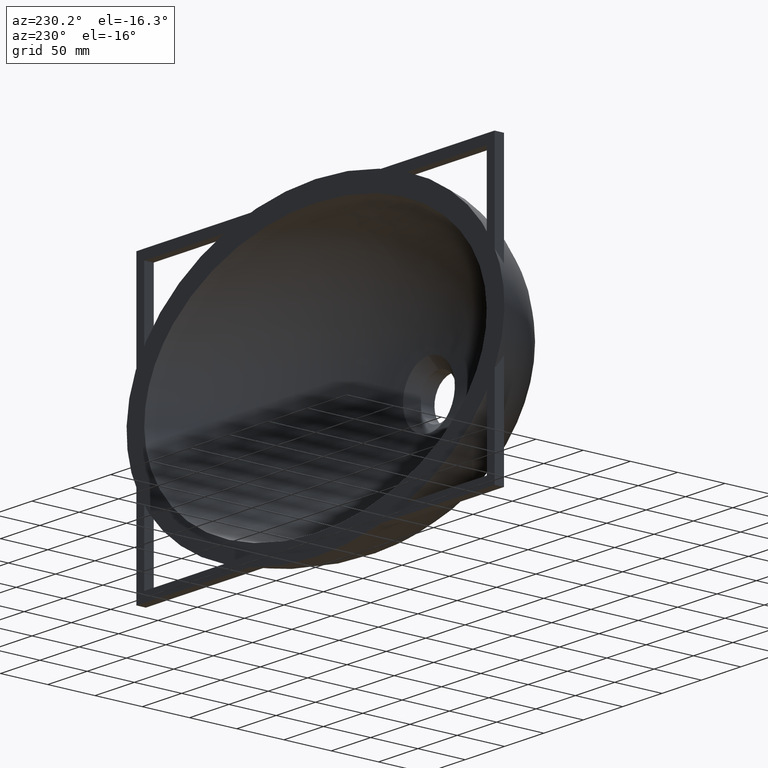
[diagram: clean part render]
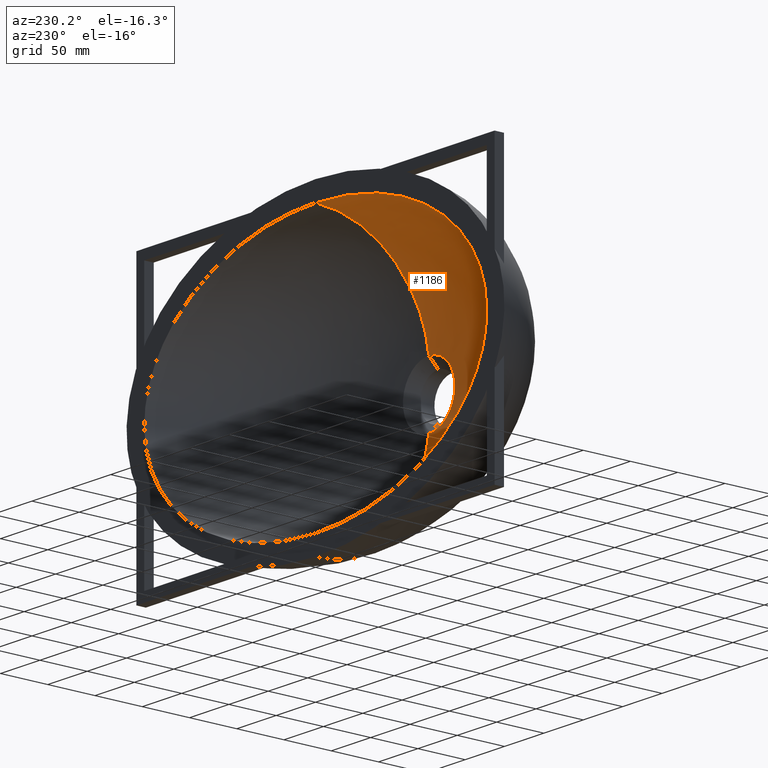
[diagram: same view with one face highlighted and labeled with its STEP entity id]
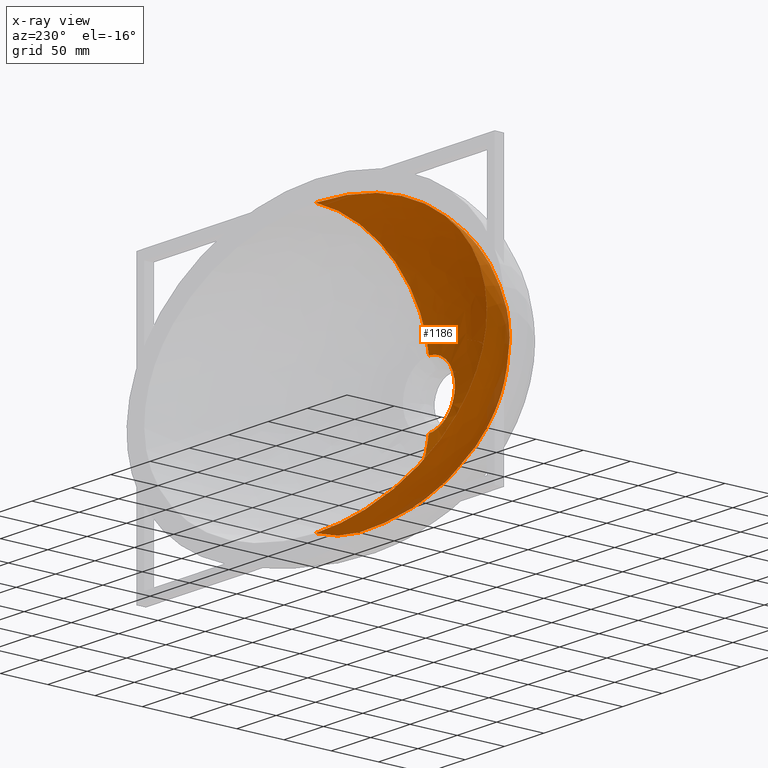
[diagram: x-ray of the same camera — body ghosted, the highlighted face saturated]
A machine part, auxiliary view. The second image highlights one B-rep face of the part: STEP entity #1186.
The next image is the same camera in x-ray: the body ghosted, the highlighted face saturated — about 4% of this face is hidden behind the body in this view.
In plain terms, the highlighted face is a freeform B-spline surface patch.
Its self-contained STEP definition (entity closure, byte-faithful):
#3 = CARTESIAN_POINT ( 'NONE',  ( -212.4004091137150600, 2.775557561562891400E-014, 36.95796738000058900 ) ) ;
#9 = CARTESIAN_POINT ( 'NONE',  ( 1.533184774726040100, -95.91021076863501100, 93.73218920455244100 ) ) ;
#19 = CARTESIAN_POINT ( 'NONE',  ( -161.4565826743787200, -68.44751098534096900, -32.17167586065722400 ) ) ;
#22 = EDGE_LOOP ( 'NONE', ( #2984, #1454, #49, #1190 ) ) ;
#39 = CARTESIAN_POINT ( 'NONE',  ( -155.6603527541727500, 0.0000000000000000000, -100.3236698321235100 ) ) ;
#49 = ORIENTED_EDGE ( 'NONE', *, *, #1836, .T. ) ;
#66 = CARTESIAN_POINT ( 'NONE',  ( -3.549960211076625800E-010, -80.83348536693287700, -109.8646564862800500 ) ) ;
#68 = CARTESIAN_POINT ( 'NONE',  ( 215.7975979792689100, -8.702834607775017200, -1.734723475976807100E-015 ) ) ;
#78 = CARTESIAN_POINT ( 'NONE',  ( -1.864330571446748400, -80.83348536693277700, 109.8646564862793300 ) ) ;
#81 = CARTESIAN_POINT ( 'NONE',  ( -208.2703021176164400, -8.591510840964545500, 36.89834944849305700 ) ) ;
#83 = CARTESIAN_POINT ( 'NONE',  ( -60.78651007786673000, 2.775557561562891400E-014, 135.8147164080128600 ) ) ;
#99 = CARTESIAN_POINT ( 'NONE',  ( -83.26338564322071500, -64.50469932050897600, -107.4812804148762100 ) ) ;
#118 = CARTESIAN_POINT ( 'NONE',  ( -2.717964742160461400E-011, -21.89393603866704300, -140.3066426851461600 ) ) ;
#129 = CARTESIAN_POINT ( 'NONE',  ( 162.8348448348519600, -47.10691823003046600, 66.76528916502124400 ) ) ;
#135 = CARTESIAN_POINT ( 'NONE',  ( -17.28646922207138900, -116.2650988404922900, 52.95463973616654100 ) ) ;
#157 = CARTESIAN_POINT ( 'NONE',  ( 43.15938982220106400, -119.6776503496503500, 2.255140518769849200E-014 ) ) ;
#159 = CARTESIAN_POINT ( 'NONE',  ( -44.13779843417822900, -116.9229571659076600, -38.98386121103657600 ) ) ;
#168 = CARTESIAN_POINT ( 'NONE',  ( -48.82308810643057500, -43.53764199406548100, -129.5158270008289800 ) ) ;
#194 = CARTESIAN_POINT ( 'NONE',  ( 33.41440524801380000, -120.0000000000000100, -1.040834085586084300E-014 ) ) ;
#200 = CARTESIAN_POINT ( 'NONE',  ( -2.151057110211240800E-013, -43.25209989518683100, 132.7070388703011200 ) ) ;
#208 = CARTESIAN_POINT ( 'NONE',  ( -118.0322753506958300, -65.92411151985102400, -87.61938955760001600 ) ) ;
#216 = CARTESIAN_POINT ( 'NONE',  ( -190.6906698519774500, 2.775557561562891400E-014, -70.78390841188327400 ) ) ;
#227 = CARTESIAN_POINT ( 'NONE',  ( -8.326672684688674100E-014, -107.8169295291363000, 75.13673244669630000 ) ) ;
#240 = CARTESIAN_POINT ( 'NONE',  ( -8.326672684688674100E-014, -107.8169295291363000, 75.13673244669630000 ) ) ;
#271 = CARTESIAN_POINT ( 'NONE',  ( -6.938893903907228400E-015, -120.0000000000000300, 33.00000000000000000 ) ) ;
#284 = CARTESIAN_POINT ( 'NONE',  ( 152.5725396676371900, -7.997784084648213100, 100.2237282385855900 ) ) ;
#286 = CARTESIAN_POINT ( 'NONE',  ( 124.3951799299709900, -84.83282629337979600, -55.18792347509182200 ) ) ;
#294 = CARTESIAN_POINT ( 'NONE',  ( -87.79702937929879200, -110.6844551835782800, -19.66902772454745800 ) ) ;
#299 = CARTESIAN_POINT ( 'NONE',  ( 87.79702937928041700, -110.6844551835734500, -19.66902772455252800 ) ) ;
#307 = CARTESIAN_POINT ( 'NONE',  ( -190.6906698519774500, 2.775557561562891400E-014, -70.78390841188327400 ) ) ;
#312 = CARTESIAN_POINT ( 'NONE',  ( -6.938893903907228400E-015, -120.0000000000000300, 33.00000000000000000 ) ) ;
#316 = CARTESIAN_POINT ( 'NONE',  ( 91.09472498280244700, -110.9374721530852700, 1.925543058334255900E-013 ) ) ;
#322 = CARTESIAN_POINT ( 'NONE',  ( -51.81350481240389200, -43.60426848380002700, 128.6199218012937700 ) ) ;
#325 = CARTESIAN_POINT ( 'NONE',  ( -23.61951603177939100, -120.0000000000000300, -23.61951603177940800 ) ) ;
#327 = CARTESIAN_POINT ( 'NONE',  ( -37.28661142899078100, -81.12973284296842300, -107.1722090401985400 ) ) ;
#334 = CARTESIAN_POINT ( 'NONE',  ( -124.3951799299939900, -84.83282629338481200, 55.18792347507994800 ) ) ;
#350 = CARTESIAN_POINT ( 'NONE',  ( 1.126182480604143200E-011, 0.0000000000000000000, -141.6290239623457400 ) ) ;
#373 = CARTESIAN_POINT ( 'NONE',  ( 87.79702937929542400, -110.6844551835773700, 19.66902772455180000 ) ) ;
#379 = CARTESIAN_POINT ( 'NONE',  ( -2.806729970603869100, -7.329841483789289600, 140.0000000000000000 ) ) ;
#383 = CARTESIAN_POINT ( 'NONE',  ( -28.79005539188281300, -120.0000000000000300, -16.87630028773804700 ) ) ;
#393 = CARTESIAN_POINT ( 'NONE',  ( -78.62591141148264700, -110.0940822547257300, -37.83286392480111000 ) ) ;
#409 = VERTEX_POINT ( 'NONE', #2075 ) ;
#421 = CARTESIAN_POINT ( 'NONE',  ( 78.62591141146762700, -110.0940822547229100, 37.83286392480904700 ) ) ;
#427 = CARTESIAN_POINT ( 'NONE',  ( 45.38697573348532200, -108.5759804376662000, 65.55058208392381400 ) ) ;
#432 = CARTESIAN_POINT ( 'NONE',  ( 10.62069641737427300, -107.8481349553762400, 74.78597821811153800 ) ) ;
#438 = CARTESIAN_POINT ( 'NONE',  ( -152.5725396676366200, -7.997784084646131200, 100.2237282385866300 ) ) ;
#450 = CARTESIAN_POINT ( 'NONE',  ( 1.181109265762050800, -107.8169295291363300, 75.13673244669635700 ) ) ;
#458 = CARTESIAN_POINT ( 'NONE',  ( 28.79005539188281700, -120.0000000000000300, -16.87630028773804700 ) ) ;
#462 = CARTESIAN_POINT ( 'NONE',  ( -60.31829089210594200, -117.6005794753419700, -14.37921816187265200 ) ) ;
#464 = CARTESIAN_POINT ( 'NONE',  ( -58.90145296615109800, -97.00321913941020600, -81.80139561242293700 ) ) ;
#469 = CARTESIAN_POINT ( 'NONE',  ( 1.316438730726329900, -119.1636202522265600, 40.26679227130112100 ) ) ;
#487 = CARTESIAN_POINT ( 'NONE',  ( 102.6665750776852900, -22.84853189564947600, 121.4434167997628400 ) ) ;
#505 = CARTESIAN_POINT ( 'NONE',  ( -190.6906698519857200, 2.775557561562891400E-014, 70.78390841188120000 ) ) ;
#508 = CARTESIAN_POINT ( 'NONE',  ( -1.734723475976807100E-013, -63.08528712115199300, 123.0010794568916500 ) ) ;
#518 = CARTESIAN_POINT ( 'NONE',  ( -2.441154405319403900, -43.25209989518674500, 132.7070388703010300 ) ) ;
#525 = CARTESIAN_POINT ( 'NONE',  ( -3.115563362854345500E-012, -7.292733561519465700, -141.6403361455448900 ) ) ;
#531 = CARTESIAN_POINT ( 'NONE',  ( -62.60306862804031200, -117.7276336583600900, -1.387778780781445700E-013 ) ) ;
#536 = CARTESIAN_POINT ( 'NONE',  ( -46.03432338077706700, -63.47431120541438800, 119.1762495347870300 ) ) ;
#544 = CARTESIAN_POINT ( 'NONE',  ( -1.734723475976807100E-013, -63.08528712115199300, 123.0010794568916500 ) ) ;
#546 = CARTESIAN_POINT ( 'NONE',  ( 43.37510464769351900, -63.40071205433758900, -120.0116044719162600 ) ) ;
#553 = CARTESIAN_POINT ( 'NONE',  ( -6.150635556423367200E-011, -62.92757465455842000, -124.4958169493746100 ) ) ;
#556 = CARTESIAN_POINT ( 'NONE',  ( -33.41440524801378600, -120.0000000000000300, -6.938893903907228400E-015 ) ) ;
#565 = CARTESIAN_POINT ( 'NONE',  ( 32.17118950397243500, -120.0000000000000300, -8.777137023834559000 ) ) ;
#590 = CARTESIAN_POINT ( 'NONE',  ( -31.29872873584333000, -116.5417946168452100, 47.70811978436079000 ) ) ;
#607 = CARTESIAN_POINT ( 'NONE',  ( 190.6906698519895800, 0.0000000000000000000, -70.78390841187659500 ) ) ;
#617 = CARTESIAN_POINT ( 'NONE',  ( -2.775557561562891400E-013, 2.775557561562891400E-014, 140.0000000000000000 ) ) ;
#626 = CARTESIAN_POINT ( 'NONE',  ( 45.38697573343362300, -108.5759804376569700, -65.55058208393029400 ) ) ;
#628 = CARTESIAN_POINT ( 'NONE',  ( 107.6005860422170300, -7.663812784214990800, -122.7540640331484100 ) ) ;
#635 = CARTESIAN_POINT ( 'NONE',  ( -2.081668171172168500E-014, -119.1632031328615800, 40.28191919624397600 ) ) ;
#644 = CARTESIAN_POINT ( 'NONE',  ( -138.8315607856889900, -85.86969245950415100, 28.70871632348428900 ) ) ;
#648 = CARTESIAN_POINT ( 'NONE',  ( 132.8270214751090400, -45.82197878508390000, 94.65946393085683000 ) ) ;
#650 = CARTESIAN_POINT ( 'NONE',  ( -32.17118950397243500, -120.0000000000000300, -8.777137023834559000 ) ) ;
#658 = B_SPLINE_CURVE_WITH_KNOTS ( 'NONE', 3,
 ( #2307, #1591, #962, #200, #508, #2658, #2212, #819, #887, #635, #1185 ),
 .UNSPECIFIED., .F., .F.,
 ( 4, 1, 1, 1, 1, 1, 1, 1, 4 ),
 ( 0.09528450615764809400, 0.2083739428879420900, 0.3214633796182360700, 0.4345528163485300500, 0.5476422530788241900, 0.6607316898091180100, 0.7738211265394120400, 0.8869105632697060800, 1.000000000000000000 ),
 .UNSPECIFIED. ) ;
#689 = CARTESIAN_POINT ( 'NONE',  ( -155.6603527541845700, 2.775557561562891400E-014, 100.3236698321202200 ) ) ;
#696 = CARTESIAN_POINT ( 'NONE',  ( 181.5907332733949000, -48.10631557609210100, -34.77701950853632700 ) ) ;
#698 = CARTESIAN_POINT ( 'NONE',  ( 198.8674505272586300, -25.23502153809606300, -36.44467905284519600 ) ) ;
#701 = CARTESIAN_POINT ( 'NONE',  ( -188.2491896305787400, -48.53462872441139100, -3.261280134836397300E-013 ) ) ;
#710 = CARTESIAN_POINT ( 'NONE',  ( 21.69117443705606600, -119.2883389423510600, 35.13994995469428800 ) ) ;
#711 = CARTESIAN_POINT ( 'NONE',  ( 62.60306862804128500, -117.7276336583603900, 9.714451465470119700E-014 ) ) ;
#731 = CARTESIAN_POINT ( 'NONE',  ( 208.2703021176172300, -8.591510840966016400, 36.89834944849246100 ) ) ;
#741 = CARTESIAN_POINT ( 'NONE',  ( -44.13779843415601100, -116.9229571659030400, 38.98386121103946100 ) ) ;
#744 = CARTESIAN_POINT ( 'NONE',  ( 6.245902015562590400, -21.99225941193602600, 138.6129304449905500 ) ) ;
#761 = CARTESIAN_POINT ( 'NONE',  ( 161.4565826743734600, -68.44751098533983200, 32.17167586066315700 ) ) ;
#767 = CARTESIAN_POINT ( 'NONE',  ( -181.5907332734170400, -48.10631557610006600, -34.77701950853132500 ) ) ;
#776 = CARTESIAN_POINT ( 'NONE',  ( -25.07317134312443600, -108.0249657040651800, 72.75836194054110700 ) ) ;
#780 = CARTESIAN_POINT ( 'NONE',  ( -162.8348448348700700, -47.10691823003499200, -66.76528916501335700 ) ) ;
#794 = CARTESIAN_POINT ( 'NONE',  ( -6.908689576401066600E-011, -120.0000000000000000, -33.00000000000001400 ) ) ;
#799 = CARTESIAN_POINT ( 'NONE',  ( -93.67933869670713400, -44.53703934013034200, 116.0772490079025900 ) ) ;
#807 = CARTESIAN_POINT ( 'NONE',  ( -54.00397268636994100, -117.3041197149611700, 27.65817947120766700 ) ) ;
#808 = CARTESIAN_POINT ( 'NONE',  ( -132.8270214751458100, -45.82197878509175800, -94.65946393084688300 ) ) ;
#819 = CARTESIAN_POINT ( 'NONE',  ( -8.326672684688674100E-014, -107.8169295291363000, 75.13673244669630000 ) ) ;
#825 = EDGE_CURVE ( 'NONE', #1472, #1455, #2505, .T. ) ;
#829 = CARTESIAN_POINT ( 'NONE',  ( -2.775557561562891400E-013, 2.775557561562891400E-014, 140.0000000000000000 ) ) ;
#831 = CARTESIAN_POINT ( 'NONE',  ( -60.31829089209794900, -117.6005794753400000, 14.37921816187300400 ) ) ;
#833 = CARTESIAN_POINT ( 'NONE',  ( -93.67933869677052900, -44.53703934014599500, -116.0772490078967800 ) ) ;
#835 = EDGE_CURVE ( 'NONE', #409, #1455, #2018, .T. ) ;
#841 = CARTESIAN_POINT ( 'NONE',  ( -1.181109265762238200, -107.8169295291362500, 75.13673244669624300 ) ) ;
#850 = CARTESIAN_POINT ( 'NONE',  ( 37.20779951852254200, -119.5386105613282100, -20.49502708738209500 ) ) ;
#883 = CARTESIAN_POINT ( 'NONE',  ( 198.8674505272687200, -25.23502153810053300, 36.44467905284502500 ) ) ;
#887 = CARTESIAN_POINT ( 'NONE',  ( -3.469446951953614200E-014, -116.1606320677880600, 54.69290937407546200 ) ) ;
#889 = CARTESIAN_POINT ( 'NONE',  ( -54.00397268638551700, -117.3041197149647700, -27.65817947120605800 ) ) ;
#893 = CARTESIAN_POINT ( 'NONE',  ( -143.9869658857261400, -86.31406367355742800, -3.590877595271990700E-013 ) ) ;
#906 = CARTESIAN_POINT ( 'NONE',  ( -87.79702937928379900, -110.6844551835742900, 19.66902772454806600 ) ) ;
#909 = CARTESIAN_POINT ( 'NONE',  ( -2.567390744445674500E-013, -7.329841483789318000, 140.0000000000000000 ) ) ;
#915 = CARTESIAN_POINT ( 'NONE',  ( -107.6005860422210000, -7.663812784217433300, 122.7540640331508100 ) ) ;
#917 = CARTESIAN_POINT ( 'NONE',  ( 31.29872873581925000, -116.5417946168423000, -47.70811978436621100 ) ) ;
#923 = CARTESIAN_POINT ( 'NONE',  ( -155.6603527541727500, 0.0000000000000000000, -100.3236698321235100 ) ) ;
#931 = CARTESIAN_POINT ( 'NONE',  ( 25.07317134312629400, -108.0249657040672700, 72.75836194054345200 ) ) ;
#945 = CARTESIAN_POINT ( 'NONE',  ( -4.399283321999181700E-010, 0.0000000000000000000, -140.0000000000000300 ) ) ;
#962 = CARTESIAN_POINT ( 'NONE',  ( -2.498001805406602200E-013, -21.98939562436497000, 138.6622618694610800 ) ) ;
#969 = CARTESIAN_POINT ( 'NONE',  ( 155.6603527541809900, 2.775557561562891400E-014, 100.3236698321173300 ) ) ;
#993 = CARTESIAN_POINT ( 'NONE',  ( -2.954302333706047300E-010, -95.91021076863495400, -93.73218920455187200 ) ) ;
#1007 = CARTESIAN_POINT ( 'NONE',  ( 21.69117443704678600, -119.2883389423494400, -35.13994995469543900 ) ) ;
#1013 = CARTESIAN_POINT ( 'NONE',  ( 118.0322753506503200, -65.92411151984239800, 87.61938955761418400 ) ) ;
#1023 = CARTESIAN_POINT ( 'NONE',  ( -6.908689576401066600E-011, -120.0000000000000000, -33.00000000000001400 ) ) ;
#1029 = CARTESIAN_POINT ( 'NONE',  ( -45.38697573347879900, -108.5759804376626500, 65.55058208391975000 ) ) ;
#1032 = CARTESIAN_POINT ( 'NONE',  ( -138.8315607857120100, -85.86969245951114300, -28.70871632348345400 ) ) ;
#1040 = CARTESIAN_POINT ( 'NONE',  ( -16.28559354253725300, -116.2453348564679800, -53.32939116129893600 ) ) ;
#1044 = CARTESIAN_POINT ( 'NONE',  ( 30.46951207058776500, -119.4134747518386900, -28.77634595603848300 ) ) ;
#1053 = CARTESIAN_POINT ( 'NONE',  ( 54.00397268636198300, -117.3041197149598700, -27.65817947121202300 ) ) ;
#1054 = CARTESIAN_POINT ( 'NONE',  ( 186.9380325861538100, -8.331755385077134000, 70.70500344374376300 ) ) ;
#1056 = CARTESIAN_POINT ( 'NONE',  ( 60.31829089210423700, -117.6005794753417700, 14.37921816187505400 ) ) ;
#1059 = CARTESIAN_POINT ( 'NONE',  ( -78.62591141145352900, -110.0940822547184300, 37.83286392480387400 ) ) ;
#1076 = CARTESIAN_POINT ( 'NONE',  ( -190.6906698519857200, 2.775557561562891400E-014, 70.78390841188120000 ) ) ;
#1086 = EDGE_CURVE ( 'NONE', #1699, #409, #2048, .T. ) ;
#1088 = CARTESIAN_POINT ( 'NONE',  ( 161.4565826743507600, -68.44751098533244300, -32.17167586066403100 ) ) ;
#1092 = CARTESIAN_POINT ( 'NONE',  ( 93.67933869665130000, -44.53703934012068500, -116.0772490079133100 ) ) ;
#1099 = CARTESIAN_POINT ( 'NONE',  ( -6.908689576401066600E-011, -120.0000000000000000, -33.00000000000001400 ) ) ;
#1107 = CARTESIAN_POINT ( 'NONE',  ( -64.17867876443297300, -109.3350313461902800, 53.48078534762301900 ) ) ;
#1118 = CARTESIAN_POINT ( 'NONE',  ( 101.4583354478225100, -83.49971265122438500, -78.19704882521017500 ) ) ;
#1128 = CARTESIAN_POINT ( 'NONE',  ( 44.13779843414000900, -116.9229571659006800, -38.98386121104495300 ) ) ;
#1137 = CARTESIAN_POINT ( 'NONE',  ( 60.31829089209622900, -117.6005794753397700, -14.37921816187542100 ) ) ;
#1143 = CARTESIAN_POINT ( 'NONE',  ( -2.171873791922962500E-011, -116.1182806734481100, -55.37466848046488400 ) ) ;
#1163 = CARTESIAN_POINT ( 'NONE',  ( 31.29872873584685400, -116.5417946168471100, 47.70811978436302100 ) ) ;
#1185 = CARTESIAN_POINT ( 'NONE',  ( -6.938893903907228400E-015, -120.0000000000000300, 33.00000000000000000 ) ) ;
#1186 = ADVANCED_FACE ( 'NONE', ( #1893 ), #1527, .T. ) ;
#1190 = ORIENTED_EDGE ( 'NONE', *, *, #825, .T. ) ;
#1194 = CARTESIAN_POINT ( 'NONE',  ( -1.023999319447376000, -120.0000000000000600, 32.98756784255958500 ) ) ;
#1197 = CARTESIAN_POINT ( 'NONE',  ( 178.4207076104139800, -24.56680443821493400, 69.89690413846221900 ) ) ;
#1200 = CARTESIAN_POINT ( 'NONE',  ( -2.864341853725471700, 2.775557561562891400E-014, 140.0000000000000000 ) ) ;
#1201 = CARTESIAN_POINT ( 'NONE',  ( -30.46951207060061200, -119.4134747518410400, -28.77634595603562700 ) ) ;
#1219 = CARTESIAN_POINT ( 'NONE',  ( -186.9380325861529000, -8.331755385075078700, 70.70500344374475800 ) ) ;
#1229 = CARTESIAN_POINT ( 'NONE',  ( 7.322154802386592100, -116.1763020836940100, 54.43641371655053300 ) ) ;
#1234 = CARTESIAN_POINT ( 'NONE',  ( -186.9380325861550000, -8.331755385078299300, -70.70500344374576700 ) ) ;
#1241 = CARTESIAN_POINT ( 'NONE',  ( -208.2703021176175500, -8.591510840966293500, -36.89834944849359000 ) ) ;
#1255 = CARTESIAN_POINT ( 'NONE',  ( -2.081668171172168500E-014, -119.1632031328615800, 40.28191919624397600 ) ) ;
#1260 = CARTESIAN_POINT ( 'NONE',  ( -2.775557561562891400E-013, 2.775557561562891400E-014, 140.0000000000000000 ) ) ;
#1261 = CARTESIAN_POINT ( 'NONE',  ( -6.245902015563118000, -21.99225941193577700, 138.6129304449904700 ) ) ;
#1264 = CARTESIAN_POINT ( 'NONE',  ( 2.676815149526681600, -21.98939562436502700, 138.6622618694611000 ) ) ;
#1268 = CARTESIAN_POINT ( 'NONE',  ( -206.1015952705827500, -25.52140029519259200, -2.463307335887066100E-013 ) ) ;
#1276 = CARTESIAN_POINT ( 'NONE',  ( -2.259721496136143800E-010, -107.8169295291364300, -75.13673244669666900 ) ) ;
#1278 = CARTESIAN_POINT ( 'NONE',  ( -6.938893903907228400E-015, -120.0000000000000300, 33.00000000000000000 ) ) ;
#1292 = CARTESIAN_POINT ( 'NONE',  ( -5.023065297038442600E-011, -43.10932884574825200, -134.3026448050407900 ) ) ;
#1301 = CARTESIAN_POINT ( 'NONE',  ( -167.4168892163145300, -68.92064838511727500, -3.833738881908743700E-013 ) ) ;
#1303 = CARTESIAN_POINT ( 'NONE',  ( -19.09561235860753200, 0.0000000000000000000, -139.9999999999605200 ) ) ;
#1305 = CARTESIAN_POINT ( 'NONE',  ( -144.7181125250058600, -67.34352371919027300, -61.81039954575253900 ) ) ;
#1309 = CARTESIAN_POINT ( 'NONE',  ( 5.696026945744475400, -43.25638302667020000, 132.6591706922590400 ) ) ;
#1310 = CARTESIAN_POINT ( 'NONE',  ( 102.2314579813553200, -99.18923588093194600, 47.10903697539642100 ) ) ;
#1317 = CARTESIAN_POINT ( 'NONE',  ( 39.57430379665564100, -81.19885725404293500, 106.4228152066124300 ) ) ;
#1323 = CARTESIAN_POINT ( 'NONE',  ( -178.4207076104243900, -24.56680443821798600, -69.89690413845913500 ) ) ;
#1325 = CARTESIAN_POINT ( 'NONE',  ( 145.5807437815783500, -23.70766816693248200, 99.09486023864752700 ) ) ;
#1335 = CARTESIAN_POINT ( 'NONE',  ( -5.696026945744919500, -43.25638302666981600, 132.6591706922588100 ) ) ;
#1338 = CARTESIAN_POINT ( 'NONE',  ( 54.00397268637757300, -117.3041197149636500, 27.65817947121051300 ) ) ;
#1350 = CARTESIAN_POINT ( 'NONE',  ( -56.81165446301461900, -22.22486260241895900, 134.4448280088674900 ) ) ;
#1352 = CARTESIAN_POINT ( 'NONE',  ( -2.676815149527223000, -21.98939562436491700, 138.6622618694610500 ) ) ;
#1356 = CARTESIAN_POINT ( 'NONE',  ( -56.13459941207417400, -7.404057328329550100, -136.7193277089091600 ) ) ;
#1361 = CARTESIAN_POINT ( 'NONE',  ( -5.073310513781799500, -119.1683476050294800, 40.09233432982166100 ) ) ;
#1363 = CARTESIAN_POINT ( 'NONE',  ( -4.019353927402714200E-010, -63.08528712115209200, -123.0010794568910100 ) ) ;
#1368 = CARTESIAN_POINT ( 'NONE',  ( 5.060428875570906400, -63.09001849515002600, 122.9562373321173000 ) ) ;
#1377 = CARTESIAN_POINT ( 'NONE',  ( -4.481953588532256700E-010, -21.98939562436509500, -138.6622618694605600 ) ) ;
#1380 = CARTESIAN_POINT ( 'NONE',  ( 56.81165446301546500, -22.22486260242134600, 134.4448280088683700 ) ) ;
#1384 = CARTESIAN_POINT ( 'NONE',  ( -25.75511797340643100, 2.775557561562891400E-014, 139.3847342975672600 ) ) ;
#1388 = CARTESIAN_POINT ( 'NONE',  ( -109.7819321249366700, 0.0000000000000000000, -122.8334170658673700 ) ) ;
#1414 = CARTESIAN_POINT ( 'NONE',  ( 53.53630299051273800, -22.18031479576007600, -135.3735002380871600 ) ) ;
#1423 = CARTESIAN_POINT ( 'NONE',  ( -3.946321791925902400, -120.0000000000001100, 32.84426857135493100 ) ) ;
#1427 = CARTESIAN_POINT ( 'NONE',  ( -4.350104666708827700, -80.83792907907319100, 109.8242697745879000 ) ) ;
#1428 = CARTESIAN_POINT ( 'NONE',  ( -39.57430379665282100, -81.19885725403938200, 106.4228152066090600 ) ) ;
#1434 = CARTESIAN_POINT ( 'NONE',  ( 48.82308810633527700, -43.53764199406207100, -129.5158270008177200 ) ) ;
#1454 = ORIENTED_EDGE ( 'NONE', *, *, #1086, .F. ) ;
#1455 = VERTEX_POINT ( 'NONE', #1099 ) ;
#1463 = CARTESIAN_POINT ( 'NONE',  ( 102.6665750776507500, -22.84853189563907000, -121.4434167997647300 ) ) ;
#1472 = VERTEX_POINT ( 'NONE', #312 ) ;
#1473 = CARTESIAN_POINT ( 'NONE',  ( -24.06930619122561800, -22.02471567107275200, 138.0417438790145500 ) ) ;
#1474 = CARTESIAN_POINT ( 'NONE',  ( -28.79005539188281300, -120.0000000000000400, 16.87630028773805100 ) ) ;
#1484 = CARTESIAN_POINT ( 'NONE',  ( 17.28646922207240200, -116.2650988404933800, 52.95463973616782000 ) ) ;
#1486 = CARTESIAN_POINT ( 'NONE',  ( -83.26338564314295400, -64.50469932049155400, 107.4812804148851200 ) ) ;
#1487 = CARTESIAN_POINT ( 'NONE',  ( -57.28683707449219800, 0.0000000000000000000, -136.7419520753054500 ) ) ;
#1488 = CARTESIAN_POINT ( 'NONE',  ( -102.6665750777155400, -22.84853189565597000, -121.4434167997585200 ) ) ;
#1492 = CARTESIAN_POINT ( 'NONE',  ( -19.50136297322657700, -63.14364073379083200, 122.4376907766237800 ) ) ;
#1501 = CARTESIAN_POINT ( 'NONE',  ( 118.3896615419229900, -100.4036896262227300, 2.498001805406602200E-013 ) ) ;
#1506 = CARTESIAN_POINT ( 'NONE',  ( -212.4004091137150600, 2.775557561562891400E-014, 36.95796738000058900 ) ) ;
#1527 = B_SPLINE_SURFACE_WITH_KNOTS ( 'NONE', 3, 3, ( 
 ( #3016, #1200, #2529, #1384, #2249, #1889, #2706, #1076, #1506, #3031, #1556, #216, #923, #1388, #1487, #350, #1861, #2666, #1831, #607, #2757, #2877, #2090, #1932, #969, #2856, #2551, #1586, #2812, #3015, #1260 ),
 ( #2330, #379, #1557, #2220, #1760, #915, #438, #1219, #81, #3067, #1241, #1234, #1633, #2619, #1356, #525, #2742, #628, #1970, #2283, #2663, #68, #731, #1054, #284, #2821, #2508, #2738, #2261, #1887, #909 ),
 ( #2481, #1352, #1261, #1473, #1350, #2351, #2441, #2449, #2731, #1268, #2417, #1323, #2462, #1488, #2317, #118, #1414, #1463, #2710, #1619, #698, #1704, #883, #1197, #1325, #487, #1380, #2560, #744, #1264, #1952 ),
 ( #2125, #518, #1335, #1652, #322, #799, #3025, #2471, #2512, #701, #767, #780, #808, #833, #168, #1292, #1434, #1092, #2633, #1603, #696, #3111, #2813, #129, #648, #3032, #2100, #2069, #1309, #2986, #2954 ),
 ( #544, #1923, #2702, #1492, #536, #1486, #2683, #2332, #2982, #1301, #19, #1305, #208, #99, #2947, #553, #546, #2318, #2156, #2854, #1088, #2524, #761, #2992, #1013, #2060, #3077, #2325, #1368, #2447, #1618 ),
 ( #2685, #78, #1427, #2542, #1428, #1540, #2092, #334, #644, #893, #1032, #2168, #3130, #2392, #327, #2401, #3049, #3118, #1118, #286, #2459, #2887, #2916, #3056, #2552, #2643, #1317, #2661, #2693, #2699, #2704 ),
 ( #2718, #2743, #2800, #2817, #2874, #2902, #2930, #2935, #2939, #2960, #2968, #2980, #3026, #464, #3012, #2495, #2452, #2987, #3022, #3040, #3053, #1501, #1766, #1310, #3063, #3076, #3106, #2224, #3096, #9, #3116 ),
 ( #240, #841, #1837, #1754, #776, #1029, #1107, #1059, #906, #1779, #294, #393, #2032, #2026, #2037, #2063, #2108, #626, #1822, #1846, #299, #316, #373, #421, #2674, #427, #931, #432, #2114, #450, #227 ),
 ( #3108, #3098, #3048, #2996, #135, #590, #741, #807, #831, #531, #462, #889, #159, #2207, #1040, #1143, #2199, #917, #1128, #1053, #1137, #711, #1056, #1338, #1686, #1163, #1484, #1229, #1577, #1712, #1724 ),
 ( #1255, #1759, #1820, #1361, #1919, #1676, #1988, #1997, #2055, #1851, #2059, #2185, #1201, #2297, #2305, #2359, #2365, #1007, #1044, #850, #2384, #157, #1953, #2517, #2526, #710, #2586, #2627, #469, #2723, #3126 ),
 ( #2136, #2786, #2809, #2828, #2485, #2639, #2869, #2732, #2972, #556, #3008, #2837, #3141, #2597, #2409, #2928, #2582, #2451, #2566, #458, #565, #194, #1993, #2436, #1568, #2761, #2425, #2963, #1628, #1777, #1278 ) ),
 .UNSPECIFIED., .F., .T., .F.,
 ( 4, 1, 1, 1, 1, 1, 1, 1, 4 ),
 ( 4, 1, 1, 1, 1, 1, 1, 1, 1, 1, 1, 1, 1, 1, 1, 1, 1, 1, 1, 1, 1, 1, 1, 1, 1, 1, 1, 1, 4 ),
 ( 0.09528450615764809400, 0.2083739428879420900, 0.3214633796182360700, 0.4345528163485300500, 0.5476422530788241900, 0.6607316898091180100, 0.7738211265394120400, 0.8869105632697060800, 1.000000000000000000 ),
 ( 0.0000000000000000000, 0.006250000000000088800, 0.008333333333333303700, 0.04166666666666663000, 0.08333333333333337000, 0.1249999999999998900, 0.1666666666666666300, 0.2083333333333333700, 0.2499999999999998300, 0.2916666666666666300, 0.3333333333333333700, 0.3750000000000001100, 0.4166666666666666300, 0.4583333333333333700, 0.5000000000009839900, 0.5416666666666667400, 0.5833333333333332600, 0.6250000000000000000, 0.6666666666666667400, 0.7083333333333332600, 0.7499999999999998900, 0.7916666666666666300, 0.8333333333333333700, 0.8750000000000000000, 0.9166666666666666300, 0.9583333333333333700, 0.9916666666666667000, 0.9937500000000000200, 1.000000000000000000 ),
 .UNSPECIFIED. ) ;
#1537 = CARTESIAN_POINT ( 'NONE',  ( -23.61951603177939100, -120.0000000000000300, 23.61951603177940500 ) ) ;
#1540 = CARTESIAN_POINT ( 'NONE',  ( -71.60199694476671100, -82.16659900908170800, 95.93130153649924800 ) ) ;
#1556 = CARTESIAN_POINT ( 'NONE',  ( -212.4004091137108200, 2.775557561562891400E-014, -36.95796738000139200 ) ) ;
#1557 = CARTESIAN_POINT ( 'NONE',  ( -6.549036598075284500, -7.330954721457366900, 139.9507899156337200 ) ) ;
#1568 = CARTESIAN_POINT ( 'NONE',  ( 23.61951603177940500, -120.0000000000000600, 23.61951603177941200 ) ) ;
#1577 = CARTESIAN_POINT ( 'NONE',  ( 1.899985913293572600, -116.1619026096183100, 54.67245660088384800 ) ) ;
#1586 = CARTESIAN_POINT ( 'NONE',  ( 25.75511797340574600, 2.775557561562891400E-014, 139.3847342975666400 ) ) ;
#1588 = CARTESIAN_POINT ( 'NONE',  ( -9.600190522786947800E-011, -119.1632031328615500, -40.28191919624398300 ) ) ;
#1591 = CARTESIAN_POINT ( 'NONE',  ( -2.567390744445674500E-013, -7.329841483789318000, 140.0000000000000000 ) ) ;
#1603 = CARTESIAN_POINT ( 'NONE',  ( 162.8348448348159300, -47.10691823001806000, -66.76528916502425700 ) ) ;
#1618 = CARTESIAN_POINT ( 'NONE',  ( -1.734723475976807100E-013, -63.08528712115199300, 123.0010794568916500 ) ) ;
#1619 = CARTESIAN_POINT ( 'NONE',  ( 178.4207076103944300, -24.56680443820672000, -69.89690413846312800 ) ) ;
#1628 = CARTESIAN_POINT ( 'NONE',  ( 1.023999319447355100, -120.0000000000000300, 32.98756784255958500 ) ) ;
#1633 = CARTESIAN_POINT ( 'NONE',  ( -152.5725396676395500, -7.997784084650266600, -100.2237282385881100 ) ) ;
#1652 = CARTESIAN_POINT ( 'NONE',  ( -21.95055546029214700, -43.30492518347836800, 132.1053179921983700 ) ) ;
#1676 = CARTESIAN_POINT ( 'NONE',  ( -21.69117443705488700, -119.2883389423504500, 35.13994995469352700 ) ) ;
#1686 = CARTESIAN_POINT ( 'NONE',  ( 44.13779843416226400, -116.9229571659055200, 38.98386121104229600 ) ) ;
#1699 = VERTEX_POINT ( 'NONE', #829 ) ;
#1704 = CARTESIAN_POINT ( 'NONE',  ( 206.1015952705833200, -25.52140029519300800, 1.023486850826316200E-013 ) ) ;
#1712 = CARTESIAN_POINT ( 'NONE',  ( 0.8142796771257940800, -116.1606320677880900, 54.69290937407549100 ) ) ;
#1724 = CARTESIAN_POINT ( 'NONE',  ( -3.469446951953614200E-014, -116.1606320677880600, 54.69290937407546200 ) ) ;
#1754 = CARTESIAN_POINT ( 'NONE',  ( -10.62069641737414800, -107.8481349553754300, 74.78597821811052900 ) ) ;
#1759 = CARTESIAN_POINT ( 'NONE',  ( -0.5641880274541779500, -119.1632031328615800, 40.28191919624396200 ) ) ;
#1760 = CARTESIAN_POINT ( 'NONE',  ( -59.56566518741485100, -7.421374358721228000, 135.7883101305265500 ) ) ;
#1766 = CARTESIAN_POINT ( 'NONE',  ( 114.1282283364196400, -100.0393535026367300, 24.49674570853697400 ) ) ;
#1777 = CARTESIAN_POINT ( 'NONE',  ( 0.4388568511917226300, -120.0000000000000300, 33.00000000000000000 ) ) ;
#1779 = CARTESIAN_POINT ( 'NONE',  ( -91.09472498280079800, -110.9374721530851400, -2.359223927328457600E-013 ) ) ;
#1780 = CARTESIAN_POINT ( 'NONE',  ( -2.864341853725471700, 2.775557561562891400E-014, 140.0000000000000000 ) ) ;
#1820 = CARTESIAN_POINT ( 'NONE',  ( -1.316438730726371400, -119.1636202522265500, 40.26679227130107800 ) ) ;
#1822 = CARTESIAN_POINT ( 'NONE',  ( 64.17867876440286100, -109.3350313461855300, -53.48078534763346400 ) ) ;
#1831 = CARTESIAN_POINT ( 'NONE',  ( 155.6603527541924400, 0.0000000000000000000, -100.3236698321142300 ) ) ;
#1836 = EDGE_CURVE ( 'NONE', #1699, #1472, #658, .T. ) ;
#1837 = CARTESIAN_POINT ( 'NONE',  ( -2.755921620111734200, -107.8194596988313200, 75.10877951037882400 ) ) ;
#1846 = CARTESIAN_POINT ( 'NONE',  ( 78.62591141143845200, -110.0940822547156200, -37.83286392481203800 ) ) ;
#1851 = CARTESIAN_POINT ( 'NONE',  ( -43.15938982220074400, -119.6776503496503600, -4.857225732735059900E-014 ) ) ;
#1861 = CARTESIAN_POINT ( 'NONE',  ( 57.28683707451352800, 0.0000000000000000000, -136.7419520753117600 ) ) ;
#1887 = CARTESIAN_POINT ( 'NONE',  ( 2.806729970603299800, -7.329841483789345500, 140.0000000000000000 ) ) ;
#1889 = CARTESIAN_POINT ( 'NONE',  ( -109.7819321249514100, 2.775557561562891400E-014, 122.8334170658636400 ) ) ;
#1893 = FACE_OUTER_BOUND ( 'NONE', #22, .T. ) ;
#1912 = CARTESIAN_POINT ( 'NONE',  ( -16.87630028773804000, -120.0000000000000300, 28.79005539188280600 ) ) ;
#1919 = CARTESIAN_POINT ( 'NONE',  ( -11.97758814161434200, -119.1974996139806300, 38.99789036147266300 ) ) ;
#1923 = CARTESIAN_POINT ( 'NONE',  ( -2.168755232387805000, -63.08528712115188600, 123.0010794568915900 ) ) ;
#1932 = CARTESIAN_POINT ( 'NONE',  ( 190.6906698519815400, 0.0000000000000000000, 70.78390841187840000 ) ) ;
#1952 = CARTESIAN_POINT ( 'NONE',  ( -2.498001805406602200E-013, -21.98939562436497000, 138.6622618694610800 ) ) ;
#1953 = CARTESIAN_POINT ( 'NONE',  ( 41.56835263324651900, -119.6359384131542400, 10.65723475440277000 ) ) ;
#1970 = CARTESIAN_POINT ( 'NONE',  ( 152.5725396676338900, -7.997784084644132800, -100.2237282385843100 ) ) ;
#1988 = CARTESIAN_POINT ( 'NONE',  ( -30.46951207059314700, -119.4134747518395400, 28.77634595603657200 ) ) ;
#1993 = CARTESIAN_POINT ( 'NONE',  ( 32.17118950397242800, -120.0000000000000300, 8.777137023834557200 ) ) ;
#1997 = CARTESIAN_POINT ( 'NONE',  ( -37.20779951852523500, -119.5386105613287400, 20.49502708738058800 ) ) ;
#2018 = B_SPLINE_CURVE_WITH_KNOTS ( 'NONE', 3,
 ( #2801, #2227, #1377, #2474, #1363, #66, #993, #1276, #2673, #1588, #794 ),
 .UNSPECIFIED., .F., .F.,
 ( 4, 1, 1, 1, 1, 1, 1, 1, 4 ),
 ( 0.09528450615764809400, 0.2083739428879420900, 0.3214633796182360700, 0.4345528163485300500, 0.5476422530788241900, 0.6607316898091180100, 0.7738211265394120400, 0.8869105632697060800, 1.000000000000000000 ),
 .UNSPECIFIED. ) ;
#2026 = CARTESIAN_POINT ( 'NONE',  ( -45.38697573353034200, -108.5759804376720000, -65.55058208391381000 ) ) ;
#2027 = CARTESIAN_POINT ( 'NONE',  ( -220.0497954431437500, 2.775557561562891400E-014, -8.500145032286354800E-014 ) ) ;
#2032 = CARTESIAN_POINT ( 'NONE',  ( -64.17867876447456900, -109.3350313461996400, -53.48078534761815200 ) ) ;
#2037 = CARTESIAN_POINT ( 'NONE',  ( -23.62218531528131700, -107.9856075088103500, -73.27320335887817700 ) ) ;
#2048 = B_SPLINE_CURVE_WITH_KNOTS ( 'NONE', 3,
 ( #617, #1780, #2429, #2382, #83, #2849, #689, #505, #3, #2027, #2361, #307, #39, #2304, #2151, #1303, #945 ),
 .UNSPECIFIED., .F., .F.,
 ( 4, 1, 1, 1, 1, 1, 1, 1, 1, 1, 1, 1, 1, 1, 4 ),
 ( 0.0000000000000000000, 0.006249999999987788800, 0.008333333333316903700, 0.04166666666658463300, 0.08333333333316937700, 0.1249999999997538900, 0.1666666666663386400, 0.2083333333329233600, 0.2499999999995078400, 0.2916666666660926400, 0.3333333333326774000, 0.3749999999992621500, 0.4166666666658466200, 0.4583333333324313700, 0.5000000000000000000 ),
 .UNSPECIFIED. ) ;
#2055 = CARTESIAN_POINT ( 'NONE',  ( -41.56835263324441600, -119.6359384131537200, 10.65723475440207800 ) ) ;
#2059 = CARTESIAN_POINT ( 'NONE',  ( -41.56835263324712300, -119.6359384131543800, -10.65723475440196400 ) ) ;
#2060 = CARTESIAN_POINT ( 'NONE',  ( 83.26338564315261700, -64.50469932049846000, 107.4812804148906500 ) ) ;
#2063 = CARTESIAN_POINT ( 'NONE',  ( -4.069661274641589400E-011, -107.7325905392999600, -76.06849699060866500 ) ) ;
#2069 = CARTESIAN_POINT ( 'NONE',  ( 21.95055546029206500, -43.30492518347983800, 132.1053179921993900 ) ) ;
#2075 = CARTESIAN_POINT ( 'NONE',  ( -4.399283321999181700E-010, 0.0000000000000000000, -140.0000000000000300 ) ) ;
#2090 = CARTESIAN_POINT ( 'NONE',  ( 212.4004091137117600, 0.0000000000000000000, 36.95796737999869200 ) ) ;
#2092 = CARTESIAN_POINT ( 'NONE',  ( -101.4583354478686900, -83.49971265123282600, 78.19704882519498300 ) ) ;
#2100 = CARTESIAN_POINT ( 'NONE',  ( 51.81350481240600200, -43.60426848380358000, 128.6199218012960700 ) ) ;
#2108 = CARTESIAN_POINT ( 'NONE',  ( 23.62218531520406700, -107.9856075088083100, -73.27320335886713600 ) ) ;
#2114 = CARTESIAN_POINT ( 'NONE',  ( 2.755921620111574800, -107.8194596988315200, 75.10877951037908000 ) ) ;
#2125 = CARTESIAN_POINT ( 'NONE',  ( -2.151057110211240800E-013, -43.25209989518683100, 132.7070388703011200 ) ) ;
#2130 = CARTESIAN_POINT ( 'NONE',  ( -33.41440524801378600, -120.0000000000000300, -6.938893903907228400E-015 ) ) ;
#2136 = CARTESIAN_POINT ( 'NONE',  ( -6.938893903907228400E-015, -120.0000000000000300, 33.00000000000000000 ) ) ;
#2151 = CARTESIAN_POINT ( 'NONE',  ( -57.28683707490543500, 0.0000000000000000000, -136.7419520751960000 ) ) ;
#2156 = CARTESIAN_POINT ( 'NONE',  ( 118.0322753505873100, -65.92411151982504700, -87.61938955762072100 ) ) ;
#2168 = CARTESIAN_POINT ( 'NONE',  ( -124.3951799300387100, -84.83282629339761600, -55.18792347507602600 ) ) ;
#2185 = CARTESIAN_POINT ( 'NONE',  ( -37.20779951853045700, -119.5386105613298900, -20.49502708738005900 ) ) ;
#2199 = CARTESIAN_POINT ( 'NONE',  ( 16.28559354249603400, -116.2453348564669800, -53.32939116129290400 ) ) ;
#2207 = CARTESIAN_POINT ( 'NONE',  ( -31.29872873587086300, -116.5417946168497700, -47.70811978435721600 ) ) ;
#2212 = CARTESIAN_POINT ( 'NONE',  ( -1.110223024625156500E-013, -95.91021076863492600, 93.73218920455237000 ) ) ;
#2220 = CARTESIAN_POINT ( 'NONE',  ( -25.23722667152278400, -7.343571415028976400, 139.3806610728638000 ) ) ;
#2224 = CARTESIAN_POINT ( 'NONE',  ( 13.78653328242071500, -95.95514555721149500, 93.29680331279705300 ) ) ;
#2227 = CARTESIAN_POINT ( 'NONE',  ( -4.449890607897684000E-010, -7.329841483789350000, -140.0000000000000300 ) ) ;
#2249 = CARTESIAN_POINT ( 'NONE',  ( -60.78651007786673000, 2.775557561562891400E-014, 135.8147164080128600 ) ) ;
#2261 = CARTESIAN_POINT ( 'NONE',  ( 6.549036598074716100, -7.330954721457450400, 139.9507899156336400 ) ) ;
#2283 = CARTESIAN_POINT ( 'NONE',  ( 186.9380325861514800, -8.331755385073941900, -70.70500344374301000 ) ) ;
#2297 = CARTESIAN_POINT ( 'NONE',  ( -21.69117443706412700, -119.2883389423519400, -35.13994995469236900 ) ) ;
#2304 = CARTESIAN_POINT ( 'NONE',  ( -109.7819321249366700, 0.0000000000000000000, -122.8334170658673700 ) ) ;
#2305 = CARTESIAN_POINT ( 'NONE',  ( -11.28376054908993000, -119.1910110905259600, -39.27345753338669700 ) ) ;
#2307 = CARTESIAN_POINT ( 'NONE',  ( -2.775557561562891400E-013, 2.775557561562891400E-014, 140.0000000000000000 ) ) ;
#2317 = CARTESIAN_POINT ( 'NONE',  ( -53.53630299056438700, -22.18031479576232500, -135.3735002380915400 ) ) ;
#2318 = CARTESIAN_POINT ( 'NONE',  ( 83.26338564307450000, -64.50469932048110900, -107.4812804148985200 ) ) ;
#2325 = CARTESIAN_POINT ( 'NONE',  ( 19.50136297322666600, -63.14364073379250200, 122.4376907766251500 ) ) ;
#2330 = CARTESIAN_POINT ( 'NONE',  ( -2.567390744445674500E-013, -7.329841483789318000, 140.0000000000000000 ) ) ;
#2332 = CARTESIAN_POINT ( 'NONE',  ( -144.7181125249619000, -67.34352371917660200, 61.81039954575645400 ) ) ;
#2351 = CARTESIAN_POINT ( 'NONE',  ( -102.6665750776814000, -22.84853189564531200, 121.4434167997612200 ) ) ;
#2359 = CARTESIAN_POINT ( 'NONE',  ( -7.292777493006497000E-012, -119.1492991540294100, -40.78615002767313800 ) ) ;
#2361 = CARTESIAN_POINT ( 'NONE',  ( -212.4004091137108200, 2.775557561562891400E-014, -36.95796738000139200 ) ) ;
#2365 = CARTESIAN_POINT ( 'NONE',  ( 11.28376054907608000, -119.1910110905256300, -39.27345753338465800 ) ) ;
#2382 = CARTESIAN_POINT ( 'NONE',  ( -25.75511797340643100, 2.775557561562891400E-014, 139.3847342975672600 ) ) ;
#2384 = CARTESIAN_POINT ( 'NONE',  ( 41.56835263324383300, -119.6359384131535700, -10.65723475440291200 ) ) ;
#2392 = CARTESIAN_POINT ( 'NONE',  ( -71.60199694484583700, -82.16659900909800700, -95.93130153649072200 ) ) ;
#2401 = CARTESIAN_POINT ( 'NONE',  ( -6.251943407420412800E-011, -80.68536162891598500, -111.2108802093248000 ) ) ;
#2409 = CARTESIAN_POINT ( 'NONE',  ( -8.777137023834550100, -120.0000000000000000, -32.17118950397242800 ) ) ;
#2417 = CARTESIAN_POINT ( 'NONE',  ( -198.8674505272713900, -25.23502153810128200, -36.44467905284342600 ) ) ;
#2425 = CARTESIAN_POINT ( 'NONE',  ( 9.317081241428118300, -120.0000000000000000, 31.94578056316645800 ) ) ;
#2429 = CARTESIAN_POINT ( 'NONE',  ( -6.683464325359003600, 2.775557561562891400E-014, 139.9511292811297700 ) ) ;
#2436 = CARTESIAN_POINT ( 'NONE',  ( 28.79005539188281300, -120.0000000000000700, 16.87630028773805100 ) ) ;
#2441 = CARTESIAN_POINT ( 'NONE',  ( -145.5807437815710700, -23.70766816692721000, 99.09486023864543800 ) ) ;
#2447 = CARTESIAN_POINT ( 'NONE',  ( 2.168755232387423100, -63.08528712115207800, 123.0010794568917000 ) ) ;
#2449 = CARTESIAN_POINT ( 'NONE',  ( -178.4207076104050600, -24.56680443820966200, 69.89690413846008700 ) ) ;
#2451 = CARTESIAN_POINT ( 'NONE',  ( 16.87630028773805100, -119.9999999999999900, -28.79005539188280900 ) ) ;
#2452 = CARTESIAN_POINT ( 'NONE',  ( 30.66369549447097500, -96.15310151769232000, -91.41999275041942500 ) ) ;
#2459 = CARTESIAN_POINT ( 'NONE',  ( 138.8315607856840500, -85.86969245950260200, -28.70871632349076600 ) ) ;
#2462 = CARTESIAN_POINT ( 'NONE',  ( -145.5807437815986700, -23.70766816693784000, -99.09486023864347700 ) ) ;
#2471 = CARTESIAN_POINT ( 'NONE',  ( -162.8348448348342000, -47.10691823002266400, 66.76528916501591500 ) ) ;
#2474 = CARTESIAN_POINT ( 'NONE',  ( -4.337296898410086200E-010, -43.25209989518676000, -132.7070388703016600 ) ) ;
#2481 = CARTESIAN_POINT ( 'NONE',  ( -2.498001805406602200E-013, -21.98939562436497000, 138.6622618694610800 ) ) ;
#2485 = CARTESIAN_POINT ( 'NONE',  ( -9.317081241428118300, -120.0000000000000000, 31.94578056316644400 ) ) ;
#2495 = CARTESIAN_POINT ( 'NONE',  ( -5.496297861284915600E-011, -95.78876539410555300, -94.88828743161445800 ) ) ;
#2505 = B_SPLINE_CURVE_WITH_KNOTS ( 'NONE', 3,
 ( #271, #2810, #1194, #1423, #2791, #1912, #1537, #1474, #2793, #2130, #650, #383, #325, #2788, #2945, #2681, #1023 ),
 .UNSPECIFIED., .F., .F.,
 ( 4, 1, 1, 1, 1, 1, 1, 1, 1, 1, 1, 1, 1, 1, 4 ),
 ( 0.0000000000000000000, 0.006249999999987794000, 0.008333333333316910600, 0.04166666666658466700, 0.08333333333316944600, 0.1249999999997540000, 0.1666666666663387800, 0.2083333333329235600, 0.2499999999995080600, 0.2916666666660929200, 0.3333333333326776700, 0.3749999999992624800, 0.4166666666658470100, 0.4583333333324317600, 0.5000000000000004400 ),
 .UNSPECIFIED. ) ;
#2508 = CARTESIAN_POINT ( 'NONE',  ( 59.56566518741452400, -7.421374358722143700, 135.7883101305259600 ) ) ;
#2512 = CARTESIAN_POINT ( 'NONE',  ( -181.5907332733985700, -48.10631557609332300, 34.77701950853175100 ) ) ;
#2517 = CARTESIAN_POINT ( 'NONE',  ( 37.20779951852777900, -119.5386105613295100, 20.49502708738155100 ) ) ;
#2524 = CARTESIAN_POINT ( 'NONE',  ( 167.4168892163167800, -68.92064838511805600, 2.688821387764051000E-013 ) ) ;
#2526 = CARTESIAN_POINT ( 'NONE',  ( 30.46951207059522900, -119.4134747518403400, 28.77634595603752000 ) ) ;
#2529 = CARTESIAN_POINT ( 'NONE',  ( -6.683464325359003600, 2.775557561562891400E-014, 139.9511292811297700 ) ) ;
#2542 = CARTESIAN_POINT ( 'NONE',  ( -16.76411901345366200, -80.88829114999838100, 109.3574670015402700 ) ) ;
#2551 = CARTESIAN_POINT ( 'NONE',  ( 60.78651007786565700, 2.775557561562891400E-014, 135.8147164080114100 ) ) ;
#2552 = CARTESIAN_POINT ( 'NONE',  ( 101.4583354478865500, -83.49971265124069900, 78.19704882520250100 ) ) ;
#2560 = CARTESIAN_POINT ( 'NONE',  ( 24.06930619122528400, -22.02471567107375300, 138.0417438790149200 ) ) ;
#2566 = CARTESIAN_POINT ( 'NONE',  ( 23.61951603177941200, -120.0000000000000000, -23.61951603177940500 ) ) ;
#2582 = CARTESIAN_POINT ( 'NONE',  ( 8.777137023834564300, -120.0000000000000000, -32.17118950397243500 ) ) ;
#2586 = CARTESIAN_POINT ( 'NONE',  ( 11.97758814161467600, -119.1974996139810100, 38.99789036147310400 ) ) ;
#2597 = CARTESIAN_POINT ( 'NONE',  ( -16.87630028773804000, -120.0000000000000000, -28.79005539188281300 ) ) ;
#2619 = CARTESIAN_POINT ( 'NONE',  ( -107.6005860422245500, -7.663812784221568600, -122.7540640331523000 ) ) ;
#2627 = CARTESIAN_POINT ( 'NONE',  ( 5.073310513781806600, -119.1683476050295800, 40.09233432982185300 ) ) ;
#2633 = CARTESIAN_POINT ( 'NONE',  ( 132.8270214750575600, -45.82197878506807600, -94.65946393086217400 ) ) ;
#2639 = CARTESIAN_POINT ( 'NONE',  ( -16.87630028773804000, -120.0000000000000300, 28.79005539188280600 ) ) ;
#2643 = CARTESIAN_POINT ( 'NONE',  ( 71.60199694477674400, -82.16659900908793200, 95.93130153650513100 ) ) ;
#2658 = CARTESIAN_POINT ( 'NONE',  ( -1.457167719820518000E-013, -80.83348536693286200, 109.8646564862794200 ) ) ;
#2661 = CARTESIAN_POINT ( 'NONE',  ( 16.76411901345381500, -80.88829114999987300, 109.3574670015416800 ) ) ;
#2663 = CARTESIAN_POINT ( 'NONE',  ( 208.2703021176160100, -8.591510840964266600, -36.89834944849219800 ) ) ;
#2666 = CARTESIAN_POINT ( 'NONE',  ( 109.7819321249633200, 0.0000000000000000000, -122.8334170658575900 ) ) ;
#2673 = CARTESIAN_POINT ( 'NONE',  ( -1.495568918195688900E-010, -116.1606320677879000, -54.69290937407523500 ) ) ;
#2674 = CARTESIAN_POINT ( 'NONE',  ( 64.17867876444455500, -109.3350313461948000, 53.48078534762819200 ) ) ;
#2681 = CARTESIAN_POINT ( 'NONE',  ( -2.925712341347206800, -120.0000000000000000, -32.99999999999023000 ) ) ;
#2683 = CARTESIAN_POINT ( 'NONE',  ( -118.0322753506330400, -65.92411151983360200, 87.61938955760712100 ) ) ;
#2685 = CARTESIAN_POINT ( 'NONE',  ( -1.457167719820518000E-013, -80.83348536693286200, 109.8646564862794200 ) ) ;
#2693 = CARTESIAN_POINT ( 'NONE',  ( 4.350104666708542600, -80.83792907907356100, 109.8242697745882600 ) ) ;
#2699 = CARTESIAN_POINT ( 'NONE',  ( 1.864330571446429100, -80.83348536693293300, 109.8646564862794900 ) ) ;
#2702 = CARTESIAN_POINT ( 'NONE',  ( -5.060428875571246500, -63.09001849514958600, 122.9562373321169700 ) ) ;
#2704 = CARTESIAN_POINT ( 'NONE',  ( -1.457167719820518000E-013, -80.83348536693286200, 109.8646564862794200 ) ) ;
#2706 = CARTESIAN_POINT ( 'NONE',  ( -155.6603527541845700, 2.775557561562891400E-014, 100.3236698321202200 ) ) ;
#2710 = CARTESIAN_POINT ( 'NONE',  ( 145.5807437815504400, -23.70766816692204800, -99.09486023864913300 ) ) ;
#2718 = CARTESIAN_POINT ( 'NONE',  ( -1.110223024625156500E-013, -95.91021076863492600, 93.73218920455237000 ) ) ;
#2723 = CARTESIAN_POINT ( 'NONE',  ( 0.5641880274541294400, -119.1632031328615800, 40.28191919624398300 ) ) ;
#2731 = CARTESIAN_POINT ( 'NONE',  ( -198.8674505272614100, -25.23502153809676000, 36.44467905284341200 ) ) ;
#2732 = CARTESIAN_POINT ( 'NONE',  ( -28.79005539188281300, -120.0000000000000400, 16.87630028773805100 ) ) ;
#2738 = CARTESIAN_POINT ( 'NONE',  ( 25.23722667152224000, -7.343571415029365400, 139.3806610728635500 ) ) ;
#2742 = CARTESIAN_POINT ( 'NONE',  ( 56.13459941206821900, -7.404057328328689500, -136.7193277089115500 ) ) ;
#2743 = CARTESIAN_POINT ( 'NONE',  ( -1.533184774726297000, -95.91021076863484000, 93.73218920455229900 ) ) ;
#2757 = CARTESIAN_POINT ( 'NONE',  ( 212.4004091137158200, 0.0000000000000000000, -36.95796737999816600 ) ) ;
#2761 = CARTESIAN_POINT ( 'NONE',  ( 16.87630028773804700, -120.0000000000000300, 28.79005539188281300 ) ) ;
#2786 = CARTESIAN_POINT ( 'NONE',  ( -0.4388568511917365100, -120.0000000000000400, 33.00000000000000000 ) ) ;
#2788 = CARTESIAN_POINT ( 'NONE',  ( -16.87630028773804000, -120.0000000000000000, -28.79005539188281300 ) ) ;
#2791 = CARTESIAN_POINT ( 'NONE',  ( -9.317081241428118300, -120.0000000000000000, 31.94578056316644400 ) ) ;
#2793 = CARTESIAN_POINT ( 'NONE',  ( -32.17118950397242100, -120.0000000000000300, 8.777137023834550100 ) ) ;
#2800 = CARTESIAN_POINT ( 'NONE',  ( -3.577431141027820300, -95.91385412987065700, 93.69750625774031500 ) ) ;
#2801 = CARTESIAN_POINT ( 'NONE',  ( -4.399283321999181700E-010, 0.0000000000000000000, -140.0000000000000300 ) ) ;
#2809 = CARTESIAN_POINT ( 'NONE',  ( -1.023999319447376000, -120.0000000000000600, 32.98756784255958500 ) ) ;
#2810 = CARTESIAN_POINT ( 'NONE',  ( -0.4388568511917365100, -120.0000000000000400, 33.00000000000000000 ) ) ;
#2812 = CARTESIAN_POINT ( 'NONE',  ( 6.683464325358386300, 2.775557561562891400E-014, 139.9511292811295700 ) ) ;
#2813 = CARTESIAN_POINT ( 'NONE',  ( 181.5907332734134600, -48.10631557609887200, 34.77701950853565200 ) ) ;
#2817 = CARTESIAN_POINT ( 'NONE',  ( -13.78653328242056200, -95.95514555721021600, 93.29680331279576000 ) ) ;
#2821 = CARTESIAN_POINT ( 'NONE',  ( 107.6005860422210500, -7.663812784219042700, 122.7540640331499200 ) ) ;
#2828 = CARTESIAN_POINT ( 'NONE',  ( -3.946321791925902400, -120.0000000000001100, 32.84426857135493100 ) ) ;
#2837 = CARTESIAN_POINT ( 'NONE',  ( -28.79005539188281300, -120.0000000000000300, -16.87630028773804700 ) ) ;
#2849 = CARTESIAN_POINT ( 'NONE',  ( -109.7819321249514100, 2.775557561562891400E-014, 122.8334170658636400 ) ) ;
#2854 = CARTESIAN_POINT ( 'NONE',  ( 144.7181125249388500, -67.34352371917182700, -61.81039954576729700 ) ) ;
#2856 = CARTESIAN_POINT ( 'NONE',  ( 109.7819321249490800, 2.775557561562891400E-014, 122.8334170658613100 ) ) ;
#2869 = CARTESIAN_POINT ( 'NONE',  ( -23.61951603177939100, -120.0000000000000300, 23.61951603177940500 ) ) ;
#2874 = CARTESIAN_POINT ( 'NONE',  ( -32.54621265929282000, -96.20977602580585100, 90.77875294122607400 ) ) ;
#2877 = CARTESIAN_POINT ( 'NONE',  ( 220.0497954431431300, 0.0000000000000000000, -6.418476861114186200E-014 ) ) ;
#2887 = CARTESIAN_POINT ( 'NONE',  ( 143.9869658857289200, -86.31406367355759800, 2.931682674400804000E-013 ) ) ;
#2902 = CARTESIAN_POINT ( 'NONE',  ( -58.90145296608151400, -97.00321913939680500, 81.80139561243146300 ) ) ;
#2916 = CARTESIAN_POINT ( 'NONE',  ( 138.8315607857071300, -85.86969245950959400, 28.70871632348973200 ) ) ;
#2928 = CARTESIAN_POINT ( 'NONE',  ( 1.387778780781445700E-014, -120.0000000000000000, -33.41440524801380000 ) ) ;
#2930 = CARTESIAN_POINT ( 'NONE',  ( -83.39988800180617500, -98.09622751016058800, 66.69412176562012500 ) ) ;
#2935 = CARTESIAN_POINT ( 'NONE',  ( -102.2314579813363800, -99.18923588092512500, 47.10903697538955000 ) ) ;
#2939 = CARTESIAN_POINT ( 'NONE',  ( -114.1282283364040600, -100.0393535026318300, 24.49674570853201800 ) ) ;
#2945 = CARTESIAN_POINT ( 'NONE',  ( -8.777137023898278700, -120.0000000000000000, -32.17118950394582600 ) ) ;
#2947 = CARTESIAN_POINT ( 'NONE',  ( -43.37510464781028900, -63.40071205434124800, -120.0116044719313100 ) ) ;
#2954 = CARTESIAN_POINT ( 'NONE',  ( -2.151057110211240800E-013, -43.25209989518683100, 132.7070388703011200 ) ) ;
#2960 = CARTESIAN_POINT ( 'NONE',  ( -118.3896615419208700, -100.4036896262221200, -3.417405247674310000E-013 ) ) ;
#2963 = CARTESIAN_POINT ( 'NONE',  ( 3.946321791925881500, -120.0000000000000400, 32.84426857135494500 ) ) ;
#2968 = CARTESIAN_POINT ( 'NONE',  ( -114.1282283364242700, -100.0393535026375400, -24.49674570853120400 ) ) ;
#2972 = CARTESIAN_POINT ( 'NONE',  ( -32.17118950397242100, -120.0000000000000300, 8.777137023834550100 ) ) ;
#2980 = CARTESIAN_POINT ( 'NONE',  ( -102.2314579813756700, -99.18923588093561200, -47.10903697538572000 ) ) ;
#2982 = CARTESIAN_POINT ( 'NONE',  ( -161.4565826743561300, -68.44751098533349400, 32.17167586065800600 ) ) ;
#2984 = ORIENTED_EDGE ( 'NONE', *, *, #835, .F. ) ;
#2986 = CARTESIAN_POINT ( 'NONE',  ( 2.441154405318932200, -43.25209989518691600, 132.7070388703011800 ) ) ;
#2987 = CARTESIAN_POINT ( 'NONE',  ( 58.90145296602047900, -97.00321913938871900, -81.80139561244456600 ) ) ;
#2992 = CARTESIAN_POINT ( 'NONE',  ( 144.7181125249829600, -67.34352371918542700, 61.81039954576355900 ) ) ;
#2996 = CARTESIAN_POINT ( 'NONE',  ( -7.322154802386515700, -116.1763020836936000, 54.43641371654997800 ) ) ;
#3008 = CARTESIAN_POINT ( 'NONE',  ( -32.17118950397243500, -120.0000000000000300, -8.777137023834559000 ) ) ;
#3012 = CARTESIAN_POINT ( 'NONE',  ( -30.66369549457530000, -96.15310151769514800, -91.41999275043397700 ) ) ;
#3015 = CARTESIAN_POINT ( 'NONE',  ( 2.864341853724868200, 2.775557561562891400E-014, 140.0000000000000000 ) ) ;
#3016 = CARTESIAN_POINT ( 'NONE',  ( -2.775557561562891400E-013, 2.775557561562891400E-014, 140.0000000000000000 ) ) ;
#3022 = CARTESIAN_POINT ( 'NONE',  ( 83.39988800176540500, -98.09622751015398000, -66.69412176563339800 ) ) ;
#3025 = CARTESIAN_POINT ( 'NONE',  ( -132.8270214750946500, -45.82197878507607000, 94.65946393085154400 ) ) ;
#3026 = CARTESIAN_POINT ( 'NONE',  ( -83.39988800186229400, -98.09622751017396100, -66.69412176561324700 ) ) ;
#3031 = CARTESIAN_POINT ( 'NONE',  ( -220.0497954431437500, 2.775557561562891400E-014, -8.500145032286354800E-014 ) ) ;
#3032 = CARTESIAN_POINT ( 'NONE',  ( 93.67933869671510600, -44.53703934013647400, 116.0772490079067300 ) ) ;
#3040 = CARTESIAN_POINT ( 'NONE',  ( 102.2314579813159100, -99.18923588092140200, -47.10903697540008000 ) ) ;
#3048 = CARTESIAN_POINT ( 'NONE',  ( -1.899985913293649000, -116.1619026096182000, 54.67245660088371300 ) ) ;
#3049 = CARTESIAN_POINT ( 'NONE',  ( 37.28661142887212800, -81.12973284296484200, -107.1722090401825200 ) ) ;
#3053 = CARTESIAN_POINT ( 'NONE',  ( 114.1282283363993700, -100.0393535026309900, -24.49674570853785100 ) ) ;
#3056 = CARTESIAN_POINT ( 'NONE',  ( 124.3951799300158400, -84.83282629339264200, 55.18792347508749400 ) ) ;
#3063 = CARTESIAN_POINT ( 'NONE',  ( 83.39988800182169400, -98.09622751016740900, 66.69412176562694600 ) ) ;
#3067 = CARTESIAN_POINT ( 'NONE',  ( -215.7975979792688900, -8.702834607774850200, -1.474514954580286000E-013 ) ) ;
#3076 = CARTESIAN_POINT ( 'NONE',  ( 58.90145296609028200, -97.00321913940213400, 81.80139561243680600 ) ) ;
#3077 = CARTESIAN_POINT ( 'NONE',  ( 46.03432338077975300, -63.47431120541832400, 119.1762495347901700 ) ) ;
#3096 = CARTESIAN_POINT ( 'NONE',  ( 3.577431141027598300, -95.91385412987099800, 93.69750625774064200 ) ) ;
#3098 = CARTESIAN_POINT ( 'NONE',  ( -0.8142796771258842300, -116.1606320677880300, 54.69290937407542000 ) ) ;
#3106 = CARTESIAN_POINT ( 'NONE',  ( 32.54621265929530000, -96.20977602580896400, 90.77875294122912900 ) ) ;
#3108 = CARTESIAN_POINT ( 'NONE',  ( -3.469446951953614200E-014, -116.1606320677880600, 54.69290937407546200 ) ) ;
#3111 = CARTESIAN_POINT ( 'NONE',  ( 188.2491896305813300, -48.53462872441186000, 2.307182223049153400E-013 ) ) ;
#3116 = CARTESIAN_POINT ( 'NONE',  ( -1.110223024625156500E-013, -95.91021076863492600, 93.73218920455237000 ) ) ;
#3118 = CARTESIAN_POINT ( 'NONE',  ( 71.60199694469733300, -82.16659900907161800, -95.93130153651453900 ) ) ;
#3126 = CARTESIAN_POINT ( 'NONE',  ( -2.081668171172168500E-014, -119.1632031328615800, 40.28191919624397600 ) ) ;
#3130 = CARTESIAN_POINT ( 'NONE',  ( -101.4583354479325400, -83.49971265124914100, -78.19704882518802000 ) ) ;
#3141 = CARTESIAN_POINT ( 'NONE',  ( -23.61951603177939100, -120.0000000000000300, -23.61951603177940800 ) ) ;